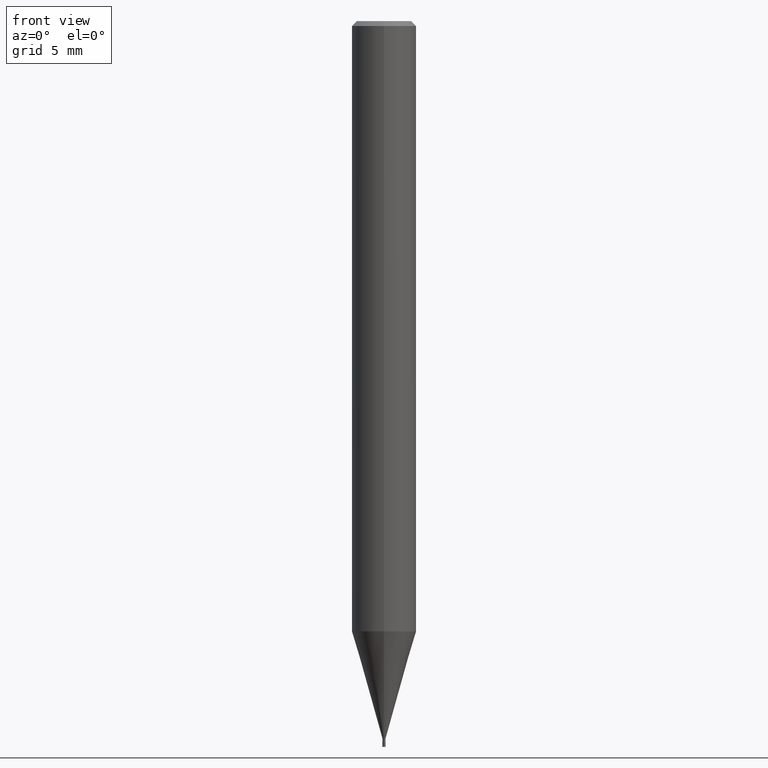
[diagram: clean part render]
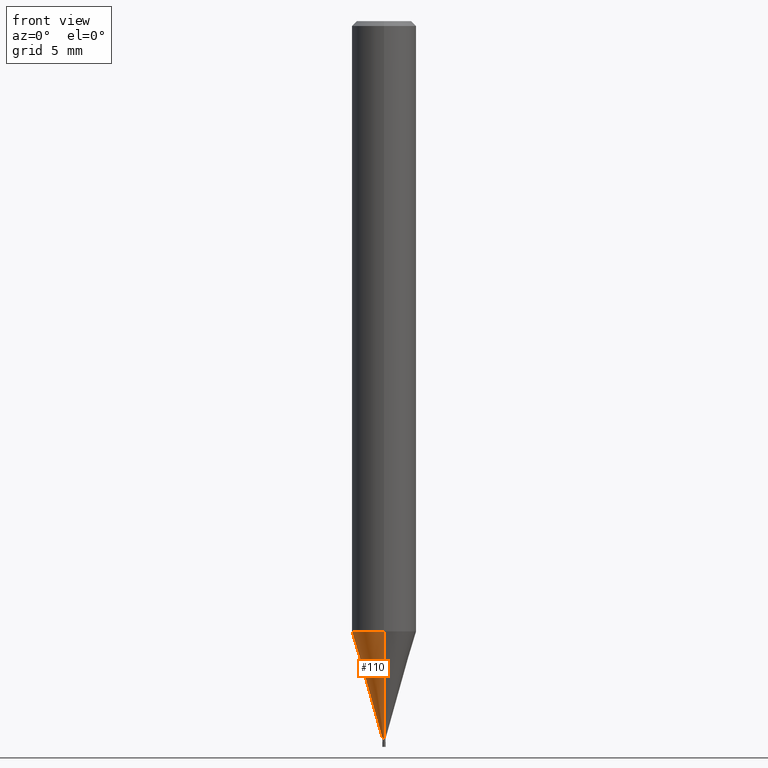
[diagram: same view with one face highlighted and labeled with its STEP entity id]
A machine part, front view. The second image highlights one B-rep face of the part: STEP entity #110.
In plain terms, the highlighted conical surface has half-angle 16 deg.
Its self-contained STEP definition (entity closure, byte-faithful):
#100=EDGE_CURVE('',#160,#178,#237,.T.);
#110=ADVANCED_FACE('',(#248),#249,.T.);
#116=VERTEX_POINT('',#257);
#132=EDGE_CURVE('',#180,#116,#274,.T.);
#160=VERTEX_POINT('',#309);
#176=EDGE_CURVE('',#180,#160,#326,.T.);
#178=VERTEX_POINT('',#328);
#180=VERTEX_POINT('',#330);
#184=EDGE_CURVE('',#178,#116,#335,.T.);
#237=CIRCLE('',#390,1.99995);
#248=FACE_OUTER_BOUND('',#406,.T.);
#249=CONICAL_SURFACE('',#407,1.04495,0.279251152364767);
#257=CARTESIAN_POINT('',(0.0,0.08995,-44.5));
#274=CIRCLE('',#436,0.08995);
#309=CARTESIAN_POINT('',(2.44915147732706E-016,-1.99995,-37.839));
#326=LINE('',#498,#499);
#328=CARTESIAN_POINT('',(0.0,1.99995,-37.839));
#330=CARTESIAN_POINT('',(1.10153341526323E-017,-0.08995,-44.5));
#335=LINE('',#509,#510);
#390=AXIS2_PLACEMENT_3D('',#548,#549,#550);
#406=EDGE_LOOP('',(#565,#566,#567,#568));
#407=AXIS2_PLACEMENT_3D('',#569,#570,#571);
#436=AXIS2_PLACEMENT_3D('',#600,#601,#602);
#498=CARTESIAN_POINT('',(1.27965240942669E-016,-1.04495,-41.1695));
#499=VECTOR('',#672,1.0);
#509=CARTESIAN_POINT('',(-1.27965240942669E-016,1.04495,-41.1695));
#510=VECTOR('',#681,1.0);
#548=CARTESIAN_POINT('',(0.0,0.0,-37.839));
#549=DIRECTION('',(0.0,0.0,-1.0));
#550=DIRECTION('',(0.0,1.0,0.0));
#565=ORIENTED_EDGE('',*,*,#184,.T.);
#566=ORIENTED_EDGE('',*,*,#132,.F.);
#567=ORIENTED_EDGE('',*,*,#176,.T.);
#568=ORIENTED_EDGE('',*,*,#100,.T.);
#569=CARTESIAN_POINT('',(0.0,0.0,-41.1695));
#570=DIRECTION('',(-0.0,-0.0,1.0));
#571=DIRECTION('',(0.0,1.0,0.0));
#600=CARTESIAN_POINT('',(0.0,0.0,-44.5));
#601=DIRECTION('',(0.0,0.0,-1.0));
#602=DIRECTION('',(0.0,1.0,0.0));
#672=DIRECTION('',(3.37545458626217E-017,-0.275635887052711,0.961262117098487));
#681=DIRECTION('',(3.37545458626217E-017,-0.275635887052711,-0.961262117098487));